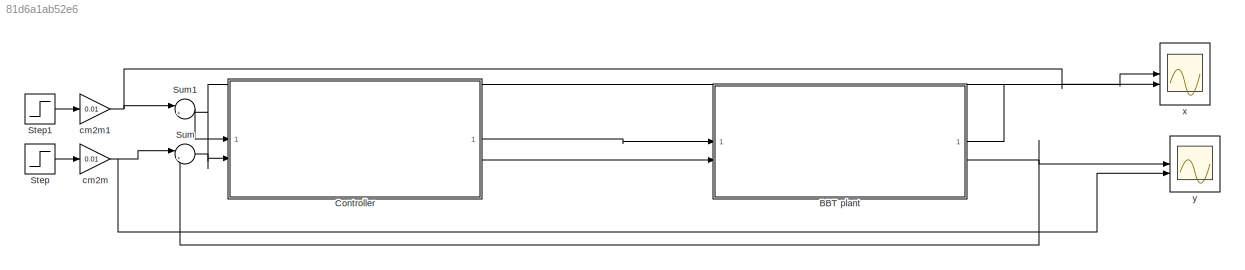
MODEL slx_81d6a1ab52e6
KIND model
CONFIG AbsTol = auto
CONFIG EnableMultiTasking = off
CONFIG FixedStep = auto
CONFIG MaxStep = auto
CONFIG MinStep = auto
CONFIG RelTol = 1e-3
CONFIG SampleTimeConstraint = Unconstrained
CONFIG SolverName = ode45
CONFIG StartTime = 0.0
CONFIG StopTime = 10
WORKSPACE source: mxarray member
WORKSPACE Sig: Simulink.Signal (value not decoded)
WORKSPACE T = 0.1
WORKSPACE g = 9.8
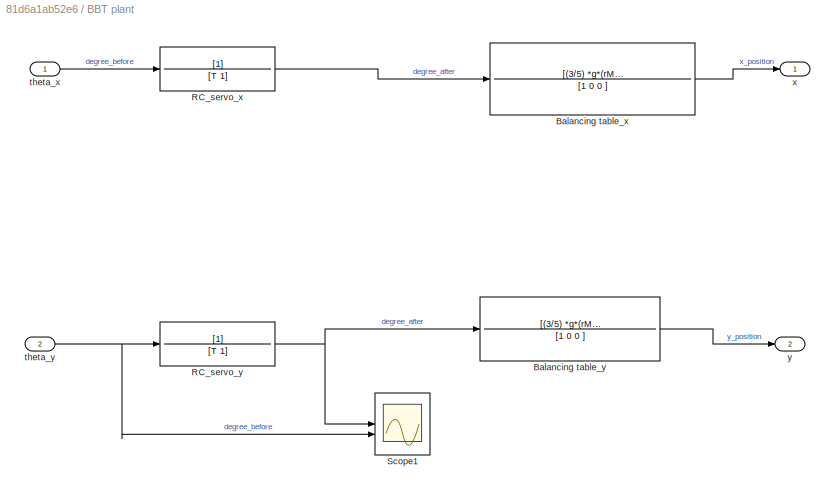
BLOCK [SubSystem] BBT plant
BLOCK [TransferFcn] BBT plant/Balancing table_x
  Denominator = [1 0 0 ]
  Numerator = [(3/5) *g*(rM/Lx)]
BLOCK [TransferFcn] BBT plant/Balancing table_y
  Denominator = [1 0 0 ]
  Numerator = [(3/5) *g*(rM/Ly)]
BLOCK [TransferFcn] BBT plant/RC_servo_x
  Denominator = [T 1]
BLOCK [TransferFcn] BBT plant/RC_servo_y
  Denominator = [T 1]
BLOCK [Scope] BBT plant/Scope1
  DataLoggingVariableName = ScopeData1
  Floating = off
  GraphicalSettings = {"GraphicalSettings":{"LegacySettings":true,"Style":{"Style":{"PlotType":"Auto"}}}}
  NumInputPorts = 2
  WasSavedAsWebScope = on
BLOCK [Inport] BBT plant/theta_x
BLOCK [Inport] BBT plant/theta_y
  Port = 2
BLOCK [Outport] BBT plant/x
BLOCK [Outport] BBT plant/y
  Port = 2
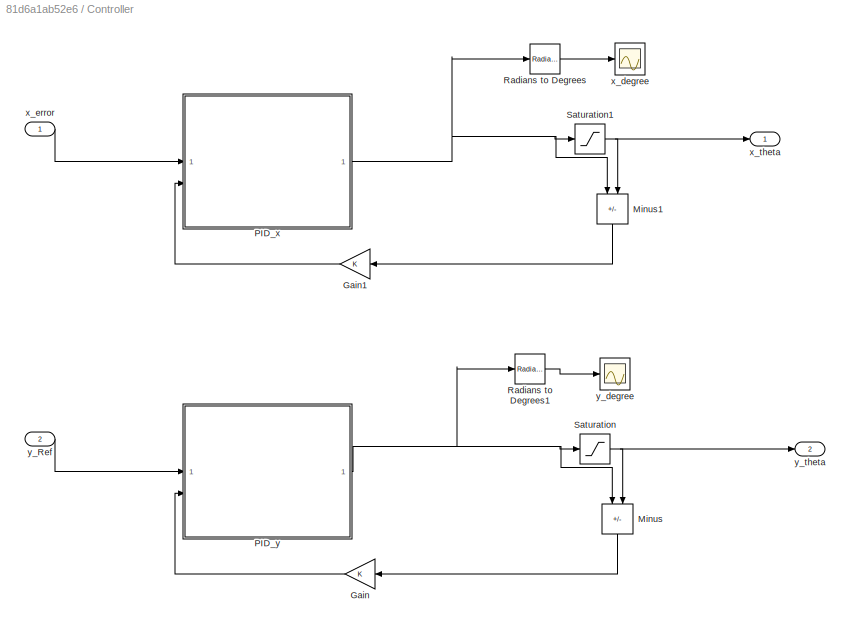
BLOCK [SubSystem] Controller
BLOCK [Gain] Controller/Gain
BLOCK [Gain] Controller/Gain1
BLOCK [Sum] Controller/Minus
  IconShape = rectangular
  Inputs = +-
  NameLocation = left
BLOCK [Sum] Controller/Minus1
  IconShape = rectangular
  Inputs = +-
  NameLocation = left
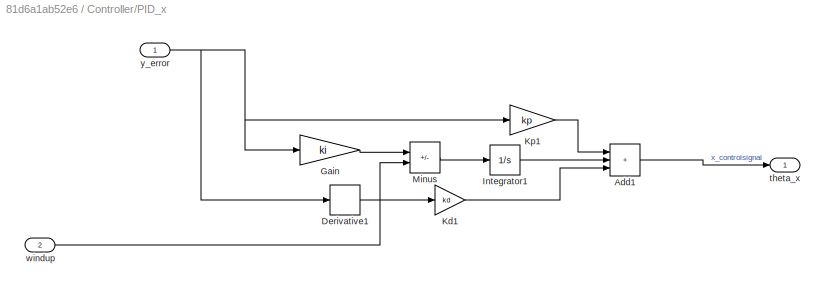
BLOCK [SubSystem] Controller/PID_x
BLOCK [Sum] Controller/PID_x/Add1
  IconShape = rectangular
  Inputs = +++
BLOCK [Derivative] Controller/PID_x/Derivative1
BLOCK [Gain] Controller/PID_x/Gain
  Gain = ki
BLOCK [Integrator] Controller/PID_x/Integrator1
BLOCK [Gain] Controller/PID_x/Kd1
  Gain = kd
BLOCK [Gain] Controller/PID_x/Kp1
  Gain = kp
BLOCK [Sum] Controller/PID_x/Minus
  IconShape = rectangular
  Inputs = +-
BLOCK [Outport] Controller/PID_x/theta_x
BLOCK [Inport] Controller/PID_x/windup
  Port = 2
BLOCK [Inport] Controller/PID_x/y_error
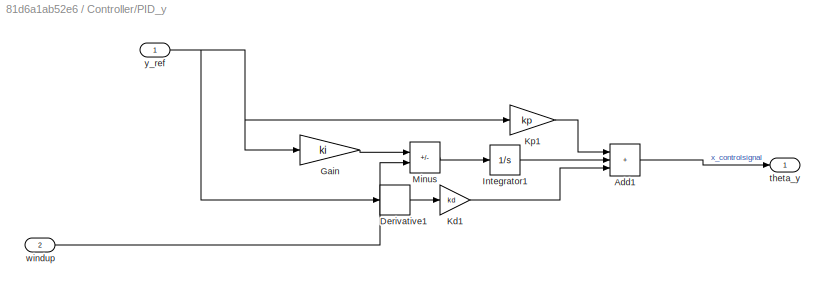
BLOCK [SubSystem] Controller/PID_y
BLOCK [Sum] Controller/PID_y/Add1
  IconShape = rectangular
  Inputs = +++
BLOCK [Derivative] Controller/PID_y/Derivative1
BLOCK [Gain] Controller/PID_y/Gain
  Gain = ki
BLOCK [Integrator] Controller/PID_y/Integrator1
BLOCK [Gain] Controller/PID_y/Kd1
  Gain = kd
BLOCK [Gain] Controller/PID_y/Kp1
  Gain = kp
BLOCK [Sum] Controller/PID_y/Minus
  IconShape = rectangular
  Inputs = +-
BLOCK [Outport] Controller/PID_y/theta_y
BLOCK [Inport] Controller/PID_y/windup
  Port = 2
BLOCK [Inport] Controller/PID_y/y_ref
BLOCK [Reference] Controller/Radians to Degrees  REF=simulink_extras/Transformations/Radians
to Degrees
  SourceBlock = simulink_extras/Transformations/Radians\nto Degrees
  SourceType = RadiansToDegrees
BLOCK [Reference] Controller/Radians to Degrees1  REF=simulink_extras/Transformations/Radians
to Degrees
  SourceBlock = simulink_extras/Transformations/Radians\nto Degrees
  SourceType = RadiansToDegrees
BLOCK [Saturate] Controller/Saturation
  LowerLimit = -1
  UpperLimit = 1
BLOCK [Saturate] Controller/Saturation1
  LowerLimit = -1
  UpperLimit = 1
BLOCK [Scope] Controller/x_degree
  ActiveDisplayYMaximum = 2.2151758521171652
  ActiveDisplayYMinimum = -0.73658266905448522
  DataLoggingVariableName = ScopeData3
  Floating = off
  GraphicalSettings = {"Style":{"BackgroundColor":[0.12941176470588237,0.12941176470588237,0.12941176470588237],"AxesColor":[0.07058823529411765,0.07058823529411765,0.07058823529411765],"LabelsColor":[0.8509803921568627,0.8509803921568627,0.8509803921568627],"PreserveColors":false,"Visible":[true],"LineStyle":["-"],"LineWidth":[1.5],"BarWidth":[0.9],"LineColor":["auto"],"LineFaceAlpha":[1],"LineEdgeAlpha":[1],"Marker":...<+1991ch>
  MultipleDisplayCache = [{"MaxYLimMag":2.2151758521171652,"MaxYLimReal":2.2151758521171652,"MinYLimMag":0,"MinYLimReal":-0.73658266905448522,"PlotAsMagnitudePhase":false,"ShowGrid":true,"ShowLegend":false,"Title":"%<SignalLabel>","YLabel":""}]
  NumInputPorts = 1
  ScopeFrameLocation = window
  WasSavedAsWebScope = on
  WindowPosition = [776.000000,48.000000,754.000000,786.000000,]
BLOCK [Inport] Controller/x_error
BLOCK [Outport] Controller/x_theta
BLOCK [Inport] Controller/y_Ref
  Port = 2
BLOCK [Scope] Controller/y_degree
  ActiveDisplayYMaximum = 84.5871337853968
  ActiveDisplayYMinimum = -27.898226301117479
  DataLoggingVariableName = ScopeData5
  Floating = off
  GraphicalSettings = {"Style":{"BackgroundColor":[0.12941176470588237,0.12941176470588237,0.12941176470588237],"AxesColor":[0.07058823529411765,0.07058823529411765,0.07058823529411765],"LabelsColor":[0.8509803921568627,0.8509803921568627,0.8509803921568627],"PreserveColors":false,"Visible":[true],"LineStyle":["-"],"LineWidth":[1.5],"BarWidth":[0.9],"LineColor":["auto"],"LineFaceAlpha":[1],"LineEdgeAlpha":[1],"Marker":...<+2013ch>
  MultipleDisplayCache = [{"MaxYLimMag":84.5871337853968,"MaxYLimReal":84.5871337853968,"MinYLimMag":0,"MinYLimReal":-27.898226301117479,"PlotAsMagnitudePhase":false,"ShowGrid":true,"ShowLegend":false,"Title":"%<SignalLabel>","YLabel":""}]
  NumInputPorts = 1
  ScopeFrameLocation = window
  WasSavedAsWebScope = on
  WindowPosition = [385.000000,242.000000,766.000000,381.000000,]
BLOCK [Outport] Controller/y_theta
  Port = 2
BLOCK [Step] Step
  After = 8
  SampleTime = 0
  Time = 0
  ZeroCross = off
BLOCK [Step] Step1
  After = 8
  SampleTime = 0
  Time = 0
  ZeroCross = off
BLOCK [Sum] Sum
  Inputs = |+-
BLOCK [Sum] Sum1
  Inputs = |+-
BLOCK [Gain] cm2m
  Gain = 0.01
BLOCK [Gain] cm2m1
  Gain = 0.01
BLOCK [Scope] x
  ActiveDisplayYMaximum = 0.085704430373965509
  ActiveDisplayYMinimum = -0.010000828613582549
  DataLoggingVariableName = ScopeData2
  Floating = off
  GraphicalSettings = {"AxesScalingProperties":{"AlignXAxis":"Center","AlignYAxis":"Center","AutoScaleXAxisLimits":false,"AxesScaling":"Manual","AxesScalingNumUpdates":10,"ExpandOnly":true,"ScaleAxesLimitsAtStop":false,"XAxisDataRange":100,"YAxisDataRange":80},"DisplayProperties":{"ColorOrder":["auto","auto","auto","auto","auto","auto","auto","auto","auto","auto","auto","auto","auto","auto","auto","auto","auto","auto",...<+2155ch>
  MultipleDisplayCache = [{"MaxYLimMag":0.090007457522242859,"MaxYLimReal":0.085704430373965509,"MinYLimMag":0,"MinYLimReal":-0.010000828613582549,"PlotAsMagnitudePhase":false,"ShowGrid":true,"ShowLegend":true,"Title":"%<SignalLabel>","YLabel":""}]
  NumInputPorts = 2
  ScopeFrameLocation = window
  ShowLegend = on
  WasSavedAsWebScope = on
  WindowPosition = [770.000000,42.000000,766.000000,381.000000,]
BLOCK [Scope] y
  ActiveDisplayYMaximum = 0.090004583308918973
  ActiveDisplayYMinimum = -0.010000509256546551
  Floating = off
  GraphicalSettings = {"Style":{"BackgroundColor":[0.12941176470588237,0.12941176470588237,0.12941176470588237],"AxesColor":[0.07058823529411765,0.07058823529411765,0.07058823529411765],"LabelsColor":[0.8509803921568627,0.8509803921568627,0.8509803921568627],"PreserveColors":false,"Visible":[true,true],"LineStyle":["-","-"],"LineWidth":[1.5,1.5],"BarWidth":[0.9,0.9],"LineColor":["auto","auto"],"LineFaceAlpha":[1,1],"Li...<+2138ch>
  MultipleDisplayCache = [{"MaxYLimMag":0.090004583308918973,"MaxYLimReal":0.090004583308918973,"MinYLimMag":0,"MinYLimReal":-0.010000509256546551,"PlotAsMagnitudePhase":false,"ShowGrid":true,"ShowLegend":true,"Title":"%<SignalLabel>","YLabel":""}]
  NumInputPorts = 2
  ScopeFrameLocation = window
  ShowLegend = on
  WasSavedAsWebScope = on
  WindowPosition = [770.000000,454.000000,766.000000,381.000000,]
LINE BBT plant/Balancing table_x:1 -> BBT plant/x:1
LINE BBT plant/Balancing table_y:1 -> BBT plant/y:1
LINE BBT plant/RC_servo_x:1 -> BBT plant/Balancing table_x:1
NET BBT plant/RC_servo_y:1 -> BBT plant/Balancing table_y:1, BBT plant/Scope1:1
LINE BBT plant/theta_x:1 -> BBT plant/RC_servo_x:1
NET BBT plant/theta_y:1 -> BBT plant/RC_servo_y:1, BBT plant/Scope1:2
NET BBT plant:1 -> Sum1:2, x:1
NET BBT plant:2 -> Sum:2, y:1
LINE Controller/Gain1:1 -> Controller/PID_x:2
LINE Controller/Gain:1 -> Controller/PID_y:2
LINE Controller/Minus1:1 -> Controller/Gain1:1
LINE Controller/Minus:1 -> Controller/Gain:1
LINE Controller/PID_x/Add1:1 -> Controller/PID_x/theta_x:1
LINE Controller/PID_x/Derivative1:1 -> Controller/PID_x/Kd1:1
LINE Controller/PID_x/Gain:1 -> Controller/PID_x/Minus:1
LINE Controller/PID_x/Integrator1:1 -> Controller/PID_x/Add1:2
LINE Controller/PID_x/Kd1:1 -> Controller/PID_x/Add1:3
LINE Controller/PID_x/Kp1:1 -> Controller/PID_x/Add1:1
LINE Controller/PID_x/Minus:1 -> Controller/PID_x/Integrator1:1
LINE Controller/PID_x/windup:1 -> Controller/PID_x/Minus:2
NET Controller/PID_x/y_error:1 -> Controller/PID_x/Derivative1:1, Controller/PID_x/Gain:1, Controller/PID_x/Kp1:1
NET Controller/PID_x:1 -> Controller/Minus1:1, Controller/Radians to Degrees:1, Controller/Saturation1:1
LINE Controller/PID_y/Add1:1 -> Controller/PID_y/theta_y:1
LINE Controller/PID_y/Derivative1:1 -> Controller/PID_y/Kd1:1
LINE Controller/PID_y/Gain:1 -> Controller/PID_y/Minus:1
LINE Controller/PID_y/Integrator1:1 -> Controller/PID_y/Add1:2
LINE Controller/PID_y/Kd1:1 -> Controller/PID_y/Add1:3
LINE Controller/PID_y/Kp1:1 -> Controller/PID_y/Add1:1
LINE Controller/PID_y/Minus:1 -> Controller/PID_y/Integrator1:1
LINE Controller/PID_y/windup:1 -> Controller/PID_y/Minus:2
NET Controller/PID_y/y_ref:1 -> Controller/PID_y/Derivative1:1, Controller/PID_y/Gain:1, Controller/PID_y/Kp1:1
NET Controller/PID_y:1 -> Controller/Minus:1, Controller/Radians to Degrees1:1, Controller/Saturation:1
LINE Controller/Radians to Degrees1:1 -> Controller/y_degree:1
LINE Controller/Radians to Degrees:1 -> Controller/x_degree:1
NET Controller/Saturation1:1 -> Controller/Minus1:2, Controller/x_theta:1
NET Controller/Saturation:1 -> Controller/Minus:2, Controller/y_theta:1
LINE Controller/x_error:1 -> Controller/PID_x:1
LINE Controller/y_Ref:1 -> Controller/PID_y:1
LINE Controller:1 -> BBT plant:1
LINE Controller:2 -> BBT plant:2
LINE Step1:1 -> cm2m1:1
LINE Step:1 -> cm2m:1
LINE Sum1:1 -> Controller:1
LINE Sum:1 -> Controller:2
NET cm2m1:1 -> Sum1:1, x:2
NET cm2m:1 -> Sum:1, y:2
note: NET lines group one-source signal fan-out (src -> all destinations, sorted); 1:1 wires keep LINE
